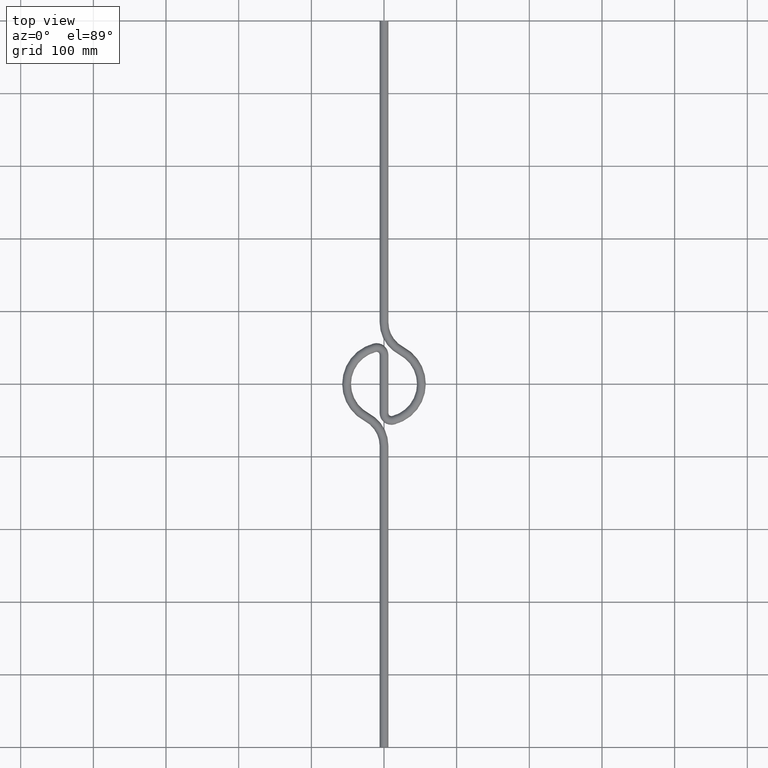
[diagram: clean part render]
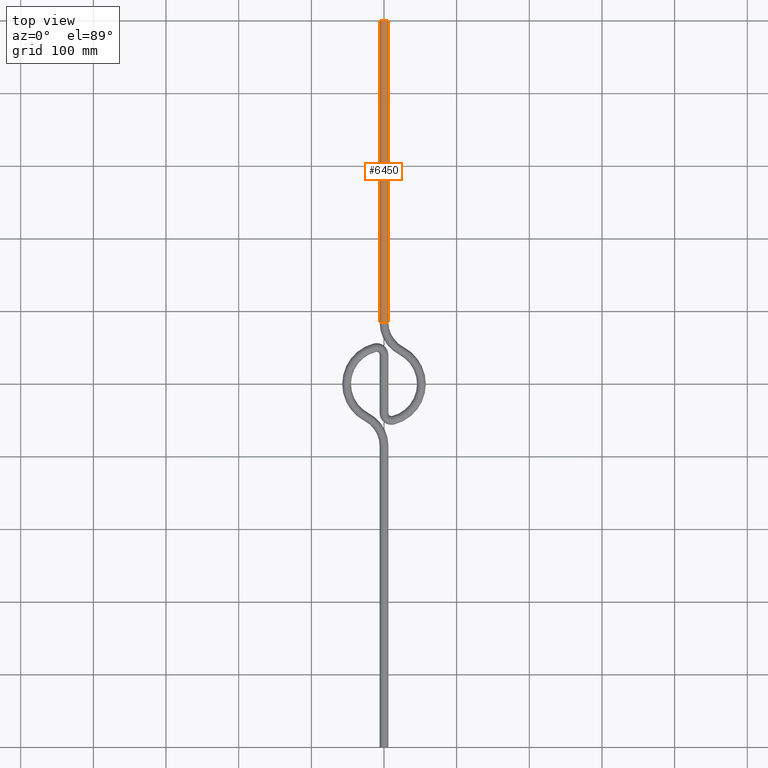
[diagram: same view with one face highlighted and labeled with its STEP entity id]
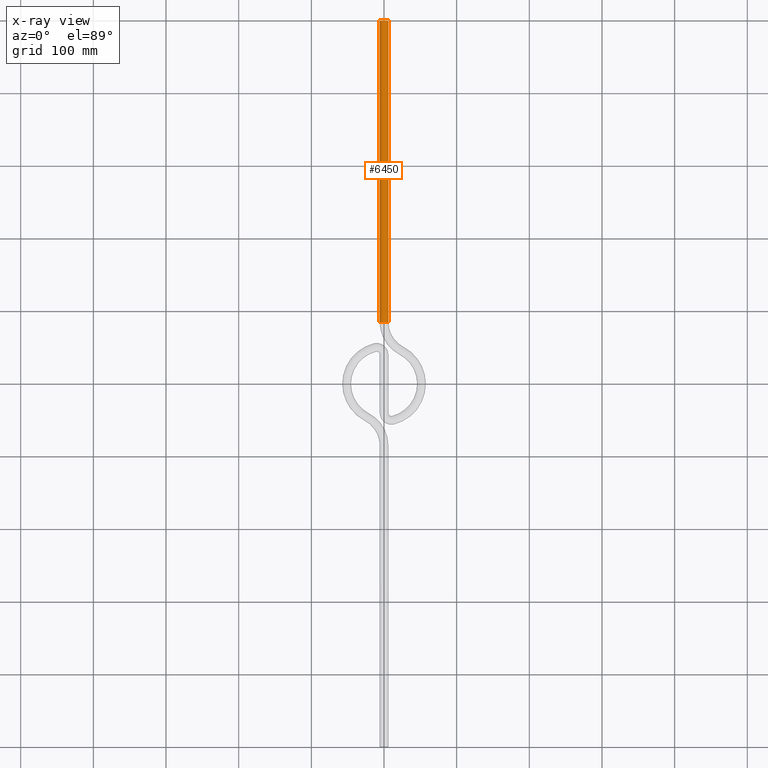
[diagram: x-ray of the same camera — body ghosted, the highlighted face saturated]
A machine part, top view. The second image highlights one B-rep face of the part: STEP entity #6450.
The next image is the same camera in x-ray: the body ghosted, the highlighted face saturated — about 0% of this face is hidden behind the body in this view.
In plain terms, the highlighted cylindrical surface (edge-blend (fillet) strip) has radius 6 mm, axis along (0, 1, 0).
Its self-contained STEP definition (entity closure, byte-faithful):
#210 = CIRCLE ( 'NONE', #5173, 6.000000000000000000 ) ;
#306 = CYLINDRICAL_SURFACE ( 'NONE', #536, 6.000000000000000900 ) ;
#401 = DIRECTION ( 'NONE',  ( 8.360113137237623700E-017, 1.000000000000000000, 0.0000000000000000000 ) ) ;
#464 = CARTESIAN_POINT ( 'NONE',  ( 5.999999999999834800, 584.9999999999997700, 7.347880794884120700E-016 ) ) ;
#479 = DIRECTION ( 'NONE',  ( 8.360113137237623700E-017, 1.000000000000000000, 0.0000000000000000000 ) ) ;
#536 = AXIS2_PLACEMENT_3D ( 'NONE', #4014, #6327, #6377 ) ;
#544 = VERTEX_POINT ( 'NONE', #4690 ) ;
#707 = LINE ( 'NONE', #464, #4683 ) ;
#939 = CARTESIAN_POINT ( 'NONE',  ( 5.999999999999835700, 584.9999999999997700, 7.347880794884122700E-016 ) ) ;
#1239 = DIRECTION ( 'NONE',  ( 1.942890293094024300E-015, 1.000000000000000000, 0.0000000000000000000 ) ) ;
#1447 = EDGE_CURVE ( 'NONE', #6459, #5787, #707, .T. ) ;
#1492 = AXIS2_PLACEMENT_3D ( 'NONE', #4331, #1239, #4851 ) ;
#1623 = VERTEX_POINT ( 'NONE', #5411 ) ;
#1835 = DIRECTION ( 'NONE',  ( 1.942890293094024300E-015, 1.000000000000000000, 0.0000000000000000000 ) ) ;
#2945 = CARTESIAN_POINT ( 'NONE',  ( 5.999999999999870300, 999.9999999999997700, 7.347880794884143400E-016 ) ) ;
#3256 = EDGE_LOOP ( 'NONE', ( #3942, #4561, #4482, #6244 ) ) ;
#3663 = EDGE_CURVE ( 'NONE', #1623, #544, #6065, .T. ) ;
#3942 = ORIENTED_EDGE ( 'NONE', *, *, #4745, .T. ) ;
#4014 = CARTESIAN_POINT ( 'NONE',  ( -1.665334536937734800E-013, 584.9999999999997700, 0.0000000000000000000 ) ) ;
#4021 = CARTESIAN_POINT ( 'NONE',  ( -6.000000000000167900, 584.9999999999997700, 0.0000000000000000000 ) ) ;
#4331 = CARTESIAN_POINT ( 'NONE',  ( -1.318389841742373400E-013, 999.9999999999997700, 0.0000000000000000000 ) ) ;
#4345 = CIRCLE ( 'NONE', #1492, 6.000000000000000000 ) ;
#4449 = FACE_OUTER_BOUND ( 'NONE', #3256, .T. ) ;
#4482 = ORIENTED_EDGE ( 'NONE', *, *, #5575, .F. ) ;
#4561 = ORIENTED_EDGE ( 'NONE', *, *, #1447, .T. ) ;
#4683 = VECTOR ( 'NONE', #479, 1000.000000000000000 ) ;
#4690 = CARTESIAN_POINT ( 'NONE',  ( -6.000000000000134100, 999.9999999999997700, 0.0000000000000000000 ) ) ;
#4696 = VECTOR ( 'NONE', #401, 1000.000000000000000 ) ;
#4745 = EDGE_CURVE ( 'NONE', #1623, #6459, #210, .T. ) ;
#4851 = DIRECTION ( 'NONE',  ( 0.0000000000000000000, 0.0000000000000000000, 1.000000000000000000 ) ) ;
#4921 = CARTESIAN_POINT ( 'NONE',  ( -1.665334536937734800E-013, 584.9999999999997700, 0.0000000000000000000 ) ) ;
#5173 = AXIS2_PLACEMENT_3D ( 'NONE', #4921, #1835, #5402 ) ;
#5402 = DIRECTION ( 'NONE',  ( 0.0000000000000000000, 0.0000000000000000000, 1.000000000000000000 ) ) ;
#5411 = CARTESIAN_POINT ( 'NONE',  ( -6.000000000000168800, 584.9999999999997700, 0.0000000000000000000 ) ) ;
#5575 = EDGE_CURVE ( 'NONE', #544, #5787, #4345, .T. ) ;
#5787 = VERTEX_POINT ( 'NONE', #2945 ) ;
#6065 = LINE ( 'NONE', #4021, #4696 ) ;
#6244 = ORIENTED_EDGE ( 'NONE', *, *, #3663, .F. ) ;
#6327 = DIRECTION ( 'NONE',  ( 8.360113137237623700E-017, 1.000000000000000000, 0.0000000000000000000 ) ) ;
#6377 = DIRECTION ( 'NONE',  ( -1.000000000000000000, 0.0000000000000000000, 0.0000000000000000000 ) ) ;
#6450 = ADVANCED_FACE ( 'NONE', ( #4449 ), #306, .T. ) ;
#6459 = VERTEX_POINT ( 'NONE', #939 ) ;